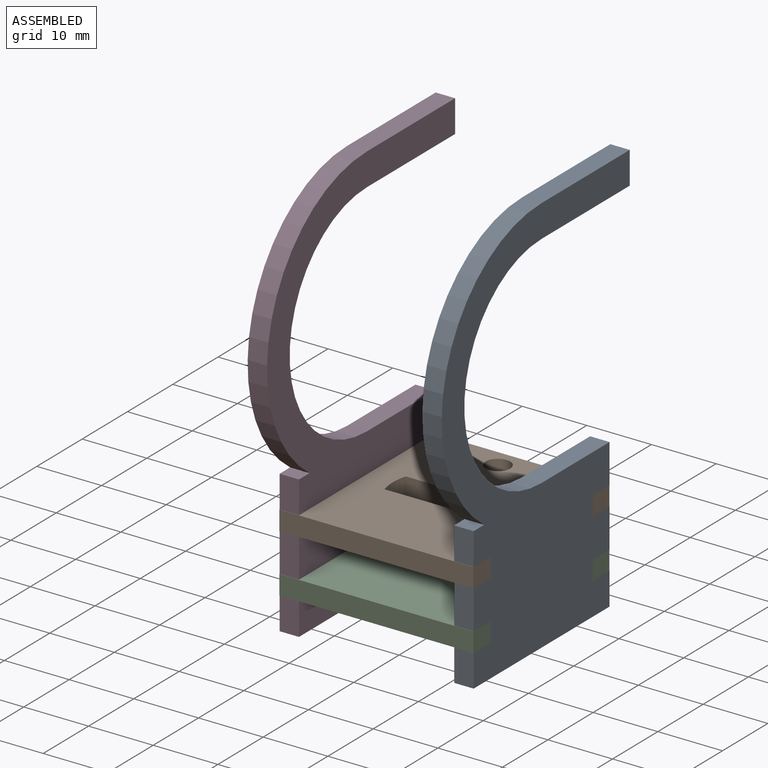
[diagram: assembled view]
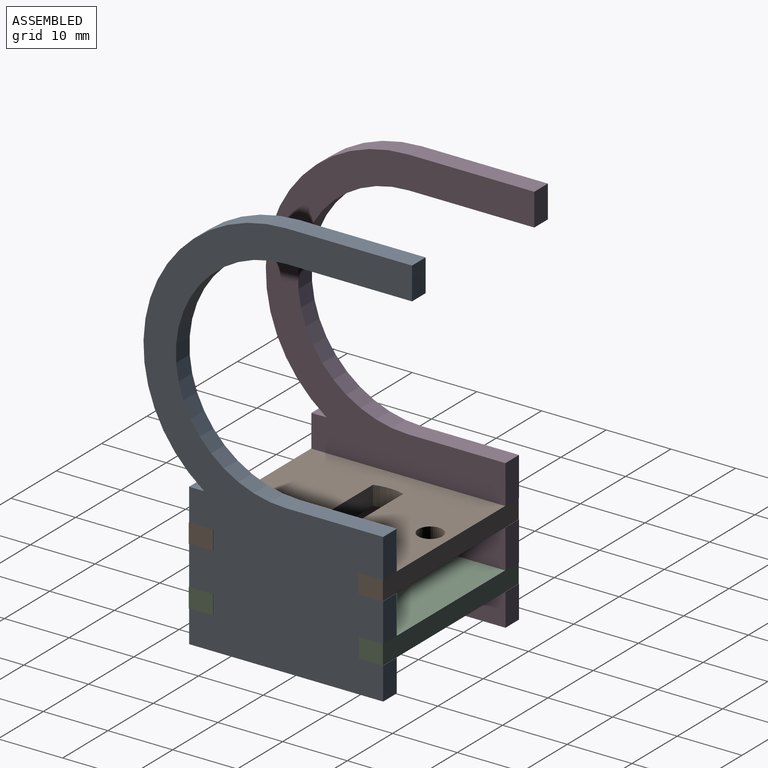
[diagram: assembled view, second angle]
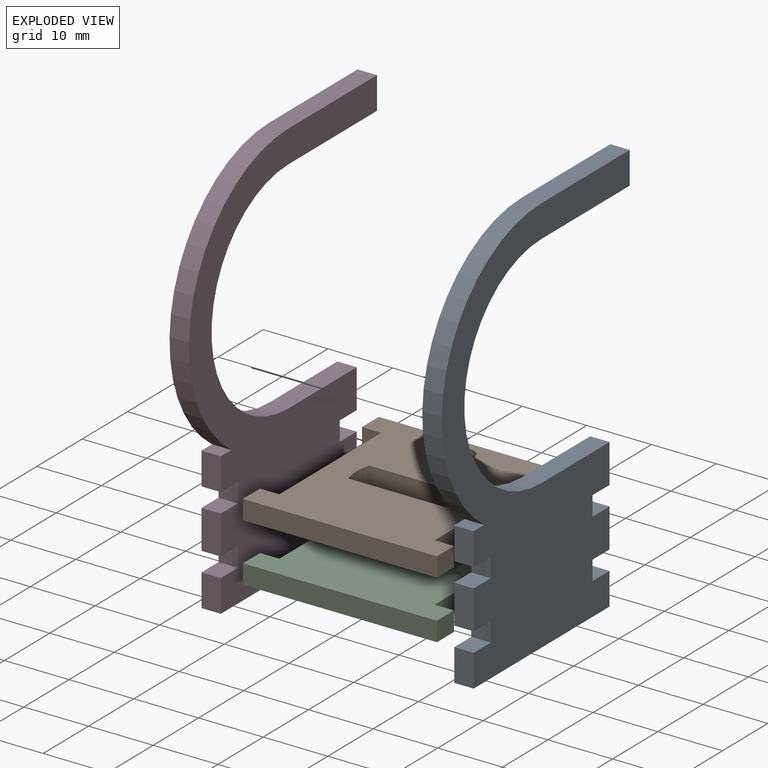
[diagram: exploded view]
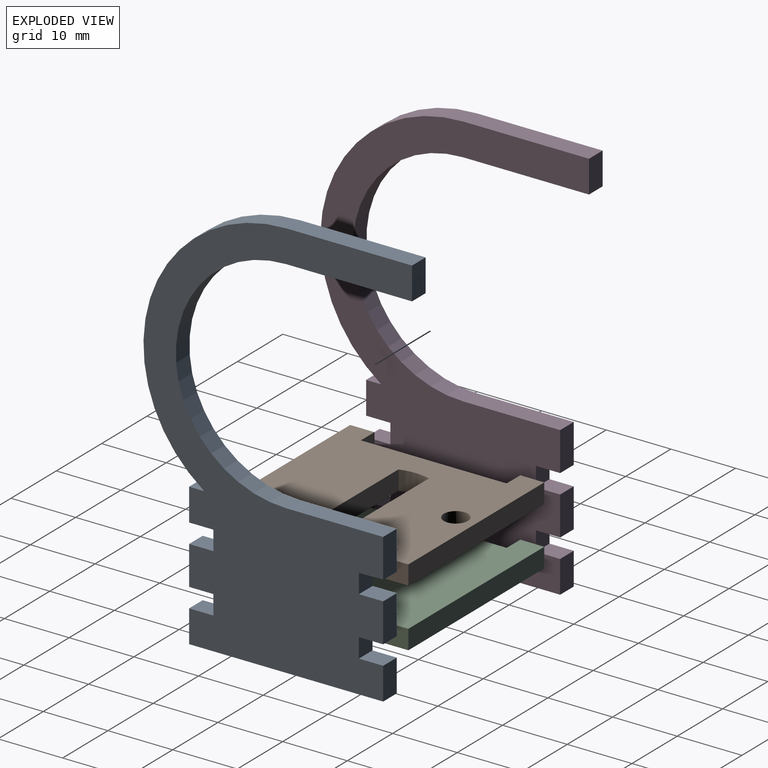
[diagram: exploded view, second angle]
ASSEMBLY  parts=4 mates=3
PART A: 28 faces, bbox 3x41.5x62.1 mm
  f0: plane 3x3mm, normal (0,-1,0), area 9mm2, adj f1,f19,f20,f21
  f1: plane 3.75x3mm, normal (0,0,1), area 11.2mm2, adj f0,f2,f20,f21
  f2: plane 6x3mm, normal (0,-1,0), area 18mm2, adj f1,f3,f20,f21
  f3: plane 3.75x3mm, normal (0,0,-1), area 11.2mm2, adj f2,f4,f20,f21
  f4: plane 3x3mm, normal (0,-1,0), area 9mm2, adj f3,f5,f20,f21
  f5: plane 3.75x3mm, normal (0,0,1), area 11.2mm2, adj f4,f6,f20,f21
  f6: plane 5x3mm, normal (0,-1,0), area 15mm2, adj f5,f7,f20,f21
  f7: plane 30x3mm, normal (0,0,-1), area 90mm2, adj f6,f8,f20,f21
  f8: plane 5x3mm, normal (0,1,0), area 15mm2, adj f7,f9,f20,f21
  f9: plane 3.75x3mm, normal (0,0,1), area 11.2mm2, adj f8,f10,f20,f21
  f10: plane 3x3mm, normal (0,1,0), area 9mm2, adj f9,f11,f20,f21
  f11: plane 3.75x3mm, normal (0,0,-1), area 11.2mm2, adj f10,f12,f20,f21
  f12: plane 6x3mm, normal (0,1,0), area 18mm2, adj f11,f13,f20,f21
  f13: plane 3.75x3mm, normal (0,0,1), area 11.2mm2, adj f12,f14,f20,f21
  f14: plane 3x3mm, normal (0,1,0), area 9mm2, adj f13,f15,f20,f21
  f15: plane 3.75x3mm, normal (0,0,-1), area 11.2mm2, adj f14,f16,f20,f21
  f16: plane 6x3mm, normal (0,1,0), area 18mm2, adj f15,f20,f21,f27
  f17: plane 3x2.33mm, normal (0,0,1), area 7mm2, adj f18,f20,f21,f22
  f18: plane 5x3mm, normal (0,-1,0), area 15mm2, adj f17,f19,f20,f21
  f19: plane 3.75x3mm, normal (0,0,-1), area 11.2mm2, adj f0,f18,f20,f21
  f20: plane 62.11x41.52mm, normal (1,0,0), area 1000mm2, adj f0,f1,f2,f3,f4,f5,f6,f7
  f21: plane 62.11x41.52mm, normal (-1,0,0), area 1000mm2, adj f0,f1,f2,f3,f4,f5,f6,f7
  f22: cylinder r=22.06mm len=40.11mm, axis (1,0,0), area 167.4mm2, adj f17,f20,f21,f24
  f23: cylinder r=17.05mm len=34.11mm, axis (1,0,0), area 160.7mm2, adj f20,f21,f25,f27
  f24: plane 19.46x3mm, normal (0,0,1), area 58.4mm2, adj f20,f21,f22,f26
  f25: plane 19.46x3mm, normal (0,0,-1), area 58.4mm2, adj f20,f21,f23,f26
  f26: plane 5x3mm, normal (0,1,0), area 15mm2, adj f20,f21,f24,f25
  f27: plane 15x3mm, normal (0,0,1), area 45mm2, adj f16,f20,f21,f23
PART B: 19 faces, bbox 30x30x3 mm
  f0: plane 30x3mm, normal (0,1,0), area 90mm2, adj f5,f6,f7,f13
  f1: plane 3.75x3mm, normal (-1,0,0), area 11.2mm2, adj f4,f5,f6,f9
  f2: plane 15.19x3mm, normal (0,1,0), area 45.6mm2, adj f5,f6,f8,f14
  f3: plane 15.19x3mm, normal (0,-1,0), area 45.6mm2, adj f5,f6,f8,f14
  f4: plane 30x3mm, normal (0,-1,0), area 90mm2, adj f1,f5,f6,f12
  f5: plane 30x30mm, normal (0,0,1), area 680.1mm2, adj f0,f1,f2,f3,f4,f7,f8,f9
  f6: plane 30x30mm, normal (0,0,-1), area 680.1mm2, adj f0,f1,f2,f3,f4,f7,f8,f9
  f7: plane 3.7x3mm, normal (-1,0,0), area 11.1mm2, adj f0,f5,f6,f11
  f8: cylinder r=7.95mm len=4.7mm, axis (0,0,-1), area 14.3mm2, adj f2,f3,f5,f6
  f9: plane 3x3mm, normal (0,1,0), area 9mm2, adj f1,f5,f6,f10
  f10: plane 22.53x3mm, normal (-1,0,0), area 67.6mm2, adj f5,f6,f9,f11
  f11: plane 3x3mm, normal (-0.01,-1,0), area 9mm2, adj f5,f6,f7,f10
  f12: plane 3.75x3mm, normal (1,0,0), area 11.2mm2, adj f4,f5,f6,f15
  f13: plane 3.7x3mm, normal (1,0,0), area 11.1mm2, adj f0,f5,f6,f17
  f14: cylinder r=7.95mm len=4.7mm, axis (0,0,-1), area 14.3mm2, adj f2,f3,f5,f6
  f15: plane 3x3mm, normal (0,1,0), area 9mm2, adj f5,f6,f12,f16
  f16: plane 22.53x3mm, normal (1,0,0), area 67.6mm2, adj f5,f6,f15,f17
  f17: plane 3x3mm, normal (0.01,-1,0), area 9mm2, adj f5,f6,f13,f16
  f18: cylinder r=1.88mm len=3.75mm, axis (0,0,1), area 35.3mm2, adj f5,f6
PART C: 18 faces, bbox 30x30x3 mm
  f0: plane 30x3mm, normal (0,1,0), area 90mm2, adj f5,f6,f7,f13
  f1: plane 3.75x3mm, normal (-1,0,0), area 11.2mm2, adj f4,f5,f6,f9
  f2: plane 15.19x3mm, normal (0,1,0), area 45.6mm2, adj f5,f6,f8,f14
  f3: plane 15.19x3mm, normal (0,-1,0), area 45.6mm2, adj f5,f6,f8,f14
  f4: plane 30x3mm, normal (0,-1,0), area 90mm2, adj f1,f5,f6,f12
  f5: plane 30x30mm, normal (0,0,1), area 691.1mm2, adj f0,f1,f2,f3,f4,f7,f8,f9
  f6: plane 30x30mm, normal (0,0,-1), area 691.1mm2, adj f0,f1,f2,f3,f4,f7,f8,f9
  f7: plane 3.7x3mm, normal (-1,0,0), area 11.1mm2, adj f0,f5,f6,f11
  f8: cylinder r=7.95mm len=4.7mm, axis (0,0,-1), area 14.3mm2, adj f2,f3,f5,f6
  f9: plane 3x3mm, normal (0,1,0), area 9mm2, adj f1,f5,f6,f10
  f10: plane 22.53x3mm, normal (-1,0,0), area 67.6mm2, adj f5,f6,f9,f11
  f11: plane 3x3mm, normal (-0.01,-1,0), area 9mm2, adj f5,f6,f7,f10
  f12: plane 3.75x3mm, normal (1,0,0), area 11.2mm2, adj f4,f5,f6,f15
  f13: plane 3.7x3mm, normal (1,0,0), area 11.1mm2, adj f0,f5,f6,f17
  f14: cylinder r=7.95mm len=4.7mm, axis (0,0,-1), area 14.3mm2, adj f2,f3,f5,f6
  f15: plane 3x3mm, normal (0,1,0), area 9mm2, adj f5,f6,f12,f16
  f16: plane 22.53x3mm, normal (1,0,0), area 67.6mm2, adj f5,f6,f15,f17
  f17: plane 3x3mm, normal (0.01,-1,0), area 9mm2, adj f5,f6,f13,f16
PART D: same geometry as A
PLACE A t=(12,0.05,3)mm
PLACE B t=(0,0,6)mm
PLACE C t=(0,0,-3)mm
PLACE D t=(-15,0.05,3)mm
MATE fastened B.f13 <-> A.f20  axis (1,0,0) through (15,11.3,7.5)mm
MATE fastened A.f20 <-> C.f13  axis (1,0,0) through (15,11.3,-1.5)mm
MATE fastened D.f21 <-> C.f7  axis (-1,0,0) through (-15,11.3,-1.5)mm
